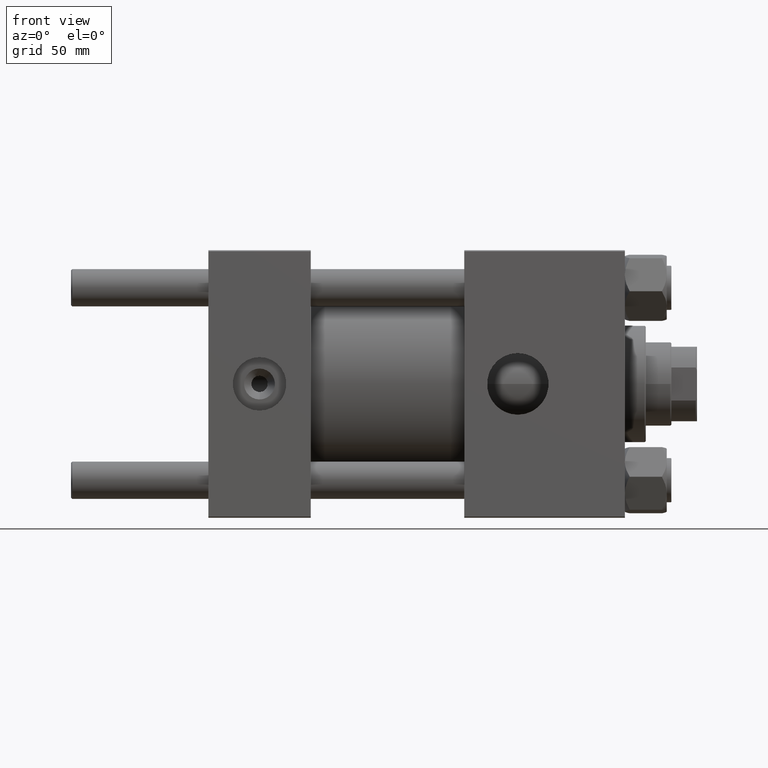
[diagram: clean part render]
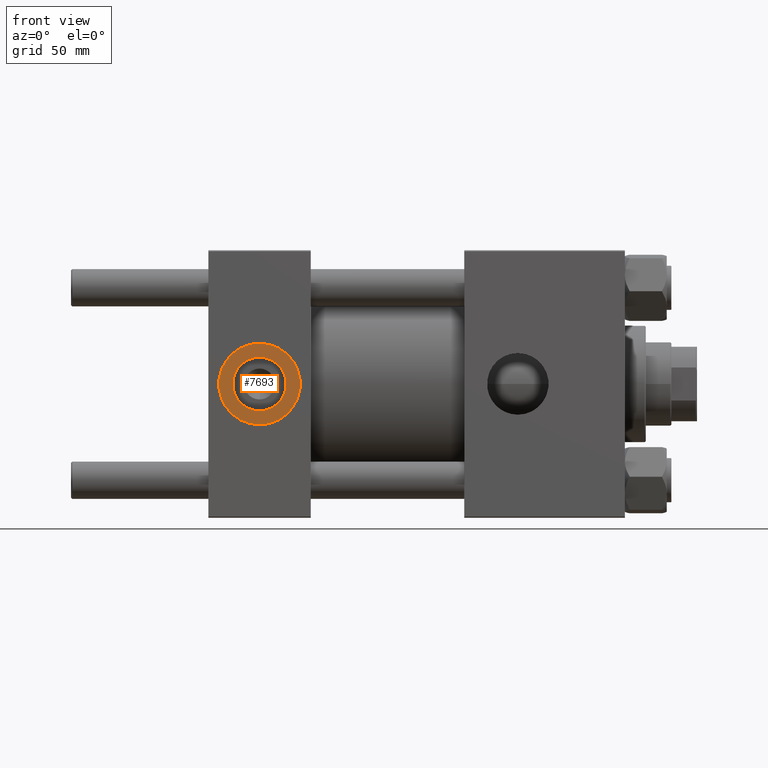
[diagram: same view with one face highlighted and labeled with its STEP entity id]
A machine part, front view. The second image highlights one B-rep face of the part: STEP entity #7693.
In plain terms, the highlighted planar face has unit normal (0, -1, -0).
Its self-contained STEP definition (entity closure, byte-faithful):
#2841 = ORIENTED_EDGE ( 'NONE', *, *, #24418, .T. ) ;
#3812 = FACE_BOUND ( 'NONE', #26360, .T. ) ;
#3845 = DIRECTION ( 'NONE',  ( 0.000000000000000000, 0.000000000000000000, -1.000000000000000000 ) ) ;
#6451 = ORIENTED_EDGE ( 'NONE', *, *, #20662, .T. ) ;
#7693 = ADVANCED_FACE ( 'NONE', ( #3812, #16307 ), #20142, .T. ) ;
#9222 = CARTESIAN_POINT ( 'NONE',  ( 22.00000000000000000, -57.30000000000001137, -17.50000000000000000 ) ) ;
#9572 = CIRCLE ( 'NONE', #38105, 17.50000000000000000 ) ;
#11917 = DIRECTION ( 'NONE',  ( 0.000000000000000000, -1.000000000000000000, -8.673617379884036705E-17 ) ) ;
#14366 = EDGE_LOOP ( 'NONE', ( #6451, #2841 ) ) ;
#15688 = CARTESIAN_POINT ( 'NONE',  ( 22.00000000000000355, -57.30000000000001137, 17.50000000000000000 ) ) ;
#15823 = ORIENTED_EDGE ( 'NONE', *, *, #35396, .F. ) ;
#16307 = FACE_OUTER_BOUND ( 'NONE', #14366, .T. ) ;
#16375 = VERTEX_POINT ( 'NONE', #15688 ) ;
#18573 = VERTEX_POINT ( 'NONE', #9222 ) ;
#19414 = DIRECTION ( 'NONE',  ( 0.000000000000000000, 0.000000000000000000, -1.000000000000000000 ) ) ;
#20142 = PLANE ( 'NONE',  #36169 ) ;
#20662 = EDGE_CURVE ( 'NONE', #18573, #16375, #9572, .T. ) ;
#23263 = CARTESIAN_POINT ( 'NONE',  ( 22.00000000000000000, -57.30000000000001137, 1.734723475976770117E-17 ) ) ;
#23460 = CIRCLE ( 'NONE', #30757, 11.50000000000000533 ) ;
#24418 = EDGE_CURVE ( 'NONE', #16375, #18573, #31234, .T. ) ;
#25447 = VERTEX_POINT ( 'NONE', #33401 ) ;
#26071 = DIRECTION ( 'NONE',  ( 0.000000000000000000, -1.000000000000000000, -8.673617379884036705E-17 ) ) ;
#26360 = EDGE_LOOP ( 'NONE', ( #15823, #31392 ) ) ;
#26734 = DIRECTION ( 'NONE',  ( 0.000000000000000000, 0.000000000000000000, -1.000000000000000000 ) ) ;
#27277 = CIRCLE ( 'NONE', #37036, 11.50000000000000533 ) ;
#27288 = CARTESIAN_POINT ( 'NONE',  ( 22.00000000000000000, -57.30000000000001137, 1.734723475976807403E-17 ) ) ;
#28297 = DIRECTION ( 'NONE',  ( 0.000000000000000000, 8.673617379884036705E-17, -1.000000000000000000 ) ) ;
#28418 = EDGE_CURVE ( 'NONE', #25447, #35537, #27277, .T. ) ;
#28427 = CARTESIAN_POINT ( 'NONE',  ( 22.00000000000000000, -57.30000000000001137, 1.734723475976807403E-17 ) ) ;
#29681 = DIRECTION ( 'NONE',  ( 0.000000000000000000, 0.000000000000000000, -1.000000000000000000 ) ) ;
#30757 = AXIS2_PLACEMENT_3D ( 'NONE', #23263, #46725, #19414 ) ;
#31234 = CIRCLE ( 'NONE', #41015, 17.50000000000000000 ) ;
#31392 = ORIENTED_EDGE ( 'NONE', *, *, #28418, .F. ) ;
#33401 = CARTESIAN_POINT ( 'NONE',  ( 22.00000000000000000, -57.30000000000001137, 11.50000000000000533 ) ) ;
#35396 = EDGE_CURVE ( 'NONE', #35537, #25447, #23460, .T. ) ;
#35537 = VERTEX_POINT ( 'NONE', #39577 ) ;
#36169 = AXIS2_PLACEMENT_3D ( 'NONE', #27288, #46683, #28297 ) ;
#37036 = AXIS2_PLACEMENT_3D ( 'NONE', #49082, #41433, #29681 ) ;
#38105 = AXIS2_PLACEMENT_3D ( 'NONE', #38798, #26071, #3845 ) ;
#38798 = CARTESIAN_POINT ( 'NONE',  ( 22.00000000000000000, -57.30000000000001137, 1.734723475976807403E-17 ) ) ;
#39577 = CARTESIAN_POINT ( 'NONE',  ( 22.00000000000000000, -57.30000000000001137, -11.50000000000000533 ) ) ;
#41015 = AXIS2_PLACEMENT_3D ( 'NONE', #28427, #11917, #26734 ) ;
#41433 = DIRECTION ( 'NONE',  ( 0.000000000000000000, -1.000000000000000000, -8.673617379884036705E-17 ) ) ;
#46683 = DIRECTION ( 'NONE',  ( 0.000000000000000000, -1.000000000000000000, -8.673617379884036705E-17 ) ) ;
#46725 = DIRECTION ( 'NONE',  ( 0.000000000000000000, -1.000000000000000000, -8.673617379884036705E-17 ) ) ;
#49082 = CARTESIAN_POINT ( 'NONE',  ( 22.00000000000000000, -57.30000000000001137, 1.734723475976770117E-17 ) ) ;